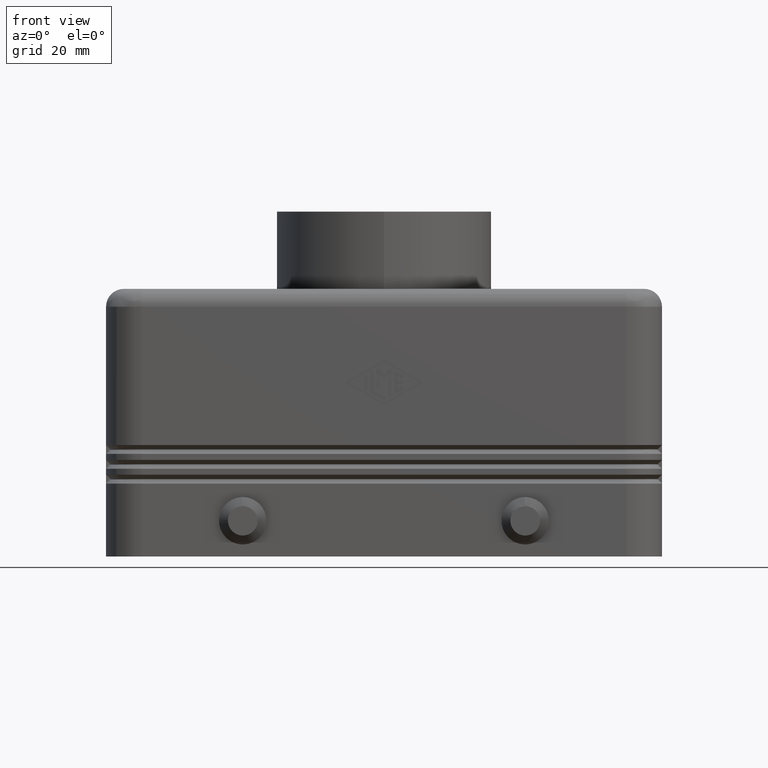
[diagram: clean part render]
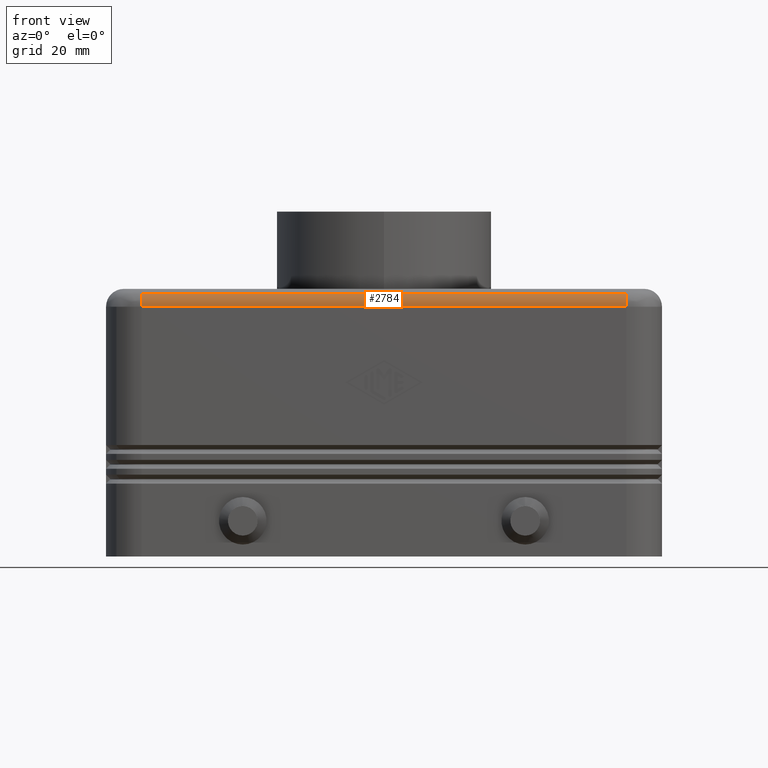
[diagram: same view with one face highlighted and labeled with its STEP entity id]
A machine part, front view. The second image highlights one B-rep face of the part: STEP entity #2784.
In plain terms, the highlighted cylindrical surface (edge-blend (fillet) strip) has radius 3 mm, axis along (1, 0, 0).
Its self-contained STEP definition (entity closure, byte-faithful):
#709=CARTESIAN_POINT('',(-40.749999999999993,-21.500000000000000,41.999999999999993));
#710=VERTEX_POINT('',#709);
#2566=CARTESIAN_POINT('',(40.749999999999986,-21.500000000000000,41.999999999999993));
#2567=VERTEX_POINT('',#2566);
#2747=CARTESIAN_POINT('',(23.374999999999993,-18.500000000000000,41.999999999999993));
#2748=DIRECTION('',(1.0,0.0,0.0));
#2749=DIRECTION('',(0.0,-0.707106781186547,0.707106781186548));
#2750=AXIS2_PLACEMENT_3D('',#2747,#2748,#2749);
#2751=CYLINDRICAL_SURFACE('',#2750,3.000000000000000);
#2752=CARTESIAN_POINT('',(-40.749999999999993,-20.621320343559638,44.121320343559638));
#2753=VERTEX_POINT('',#2752);
#2754=CARTESIAN_POINT('',(40.749999999999986,-20.621320343559642,44.121320343559638));
#2755=VERTEX_POINT('',#2754);
#2756=CARTESIAN_POINT('',(-40.749999999999993,-20.621320343559638,44.121320343559638));
#2757=DIRECTION('',(1.0,0.0,0.0));
#2758=VECTOR('',#2757,81.499999999999972);
#2759=LINE('',#2756,#2758);
#2760=EDGE_CURVE('',#2753,#2755,#2759,.T.);
#2761=ORIENTED_EDGE('',*,*,#2760,.F.);
#2762=CARTESIAN_POINT('',(-40.749999999999993,-18.500000000000000,41.999999999999993));
#2763=DIRECTION('',(1.0,0.0,0.0));
#2764=DIRECTION('',(0.0,0.0,1.0));
#2765=AXIS2_PLACEMENT_3D('',#2762,#2763,#2764);
#2766=CIRCLE('',#2765,2.999999999999998);
#2767=EDGE_CURVE('',#2753,#710,#2766,.T.);
#2768=ORIENTED_EDGE('',*,*,#2767,.T.);
#2769=CARTESIAN_POINT('',(-40.749999999999993,-21.500000000000000,41.999999999999993));
#2770=DIRECTION('',(1.0,0.0,0.0));
#2771=VECTOR('',#2770,81.499999999999972);
#2772=LINE('',#2769,#2771);
#2773=EDGE_CURVE('',#710,#2567,#2772,.T.);
#2774=ORIENTED_EDGE('',*,*,#2773,.T.);
#2775=CARTESIAN_POINT('',(40.749999999999986,-18.500000000000000,41.999999999999993));
#2776=DIRECTION('',(-1.0,0.0,0.0));
#2777=DIRECTION('',(0.0,-1.0,0.0));
#2778=AXIS2_PLACEMENT_3D('',#2775,#2776,#2777);
#2779=CIRCLE('',#2778,3.000000000000000);
#2780=EDGE_CURVE('',#2567,#2755,#2779,.T.);
#2781=ORIENTED_EDGE('',*,*,#2780,.T.);
#2782=EDGE_LOOP('',(#2761,#2768,#2774,#2781));
#2783=FACE_OUTER_BOUND('',#2782,.T.);
#2784=ADVANCED_FACE('',(#2783),#2751,.T.);